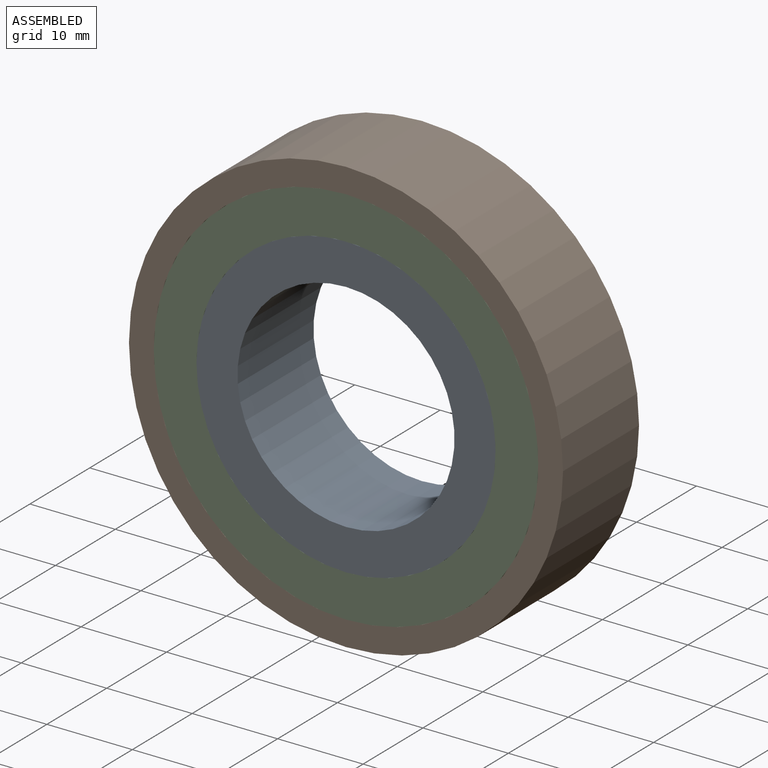
[diagram: assembled view]
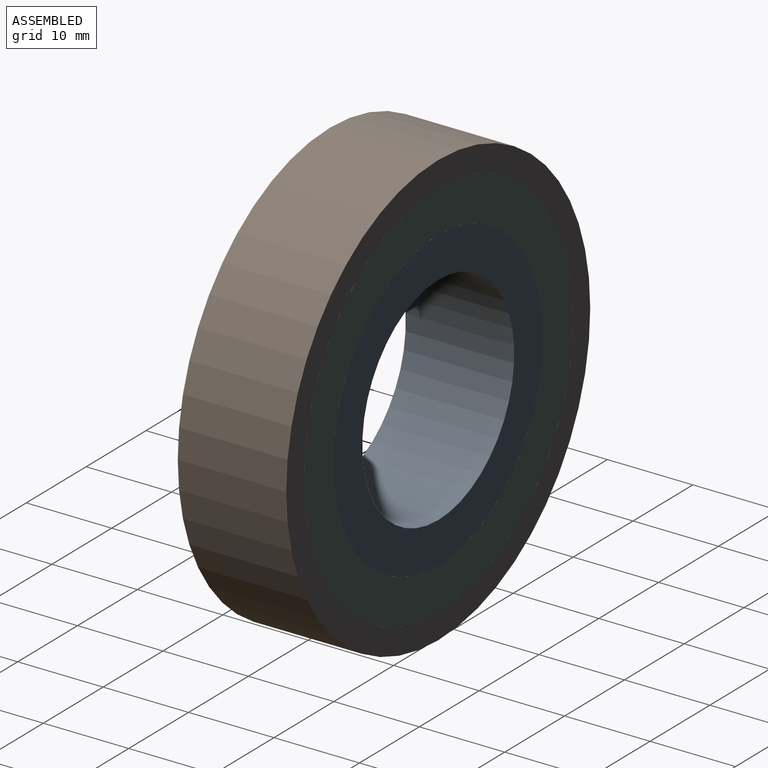
[diagram: assembled view, second angle]
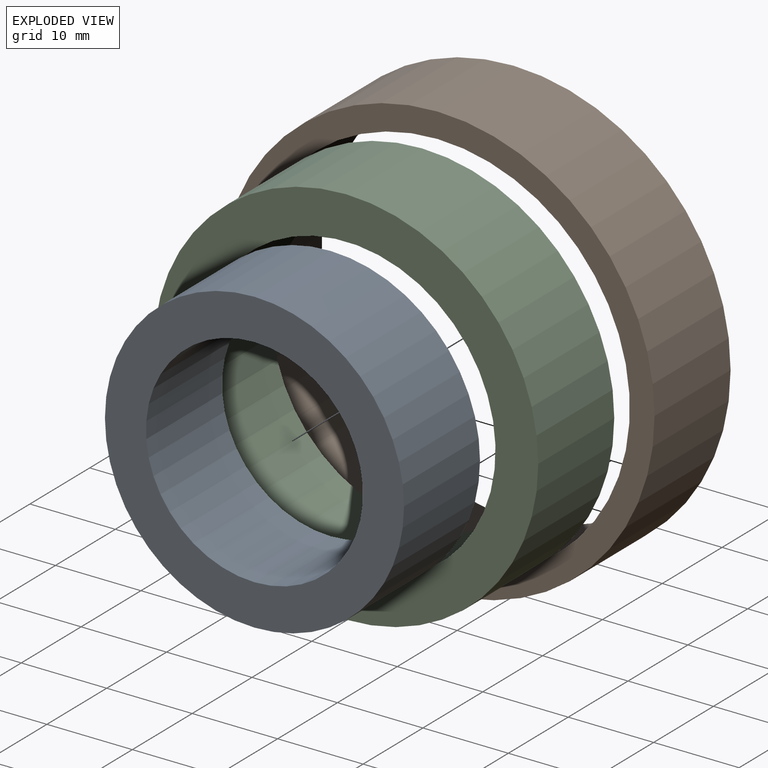
[diagram: exploded view]
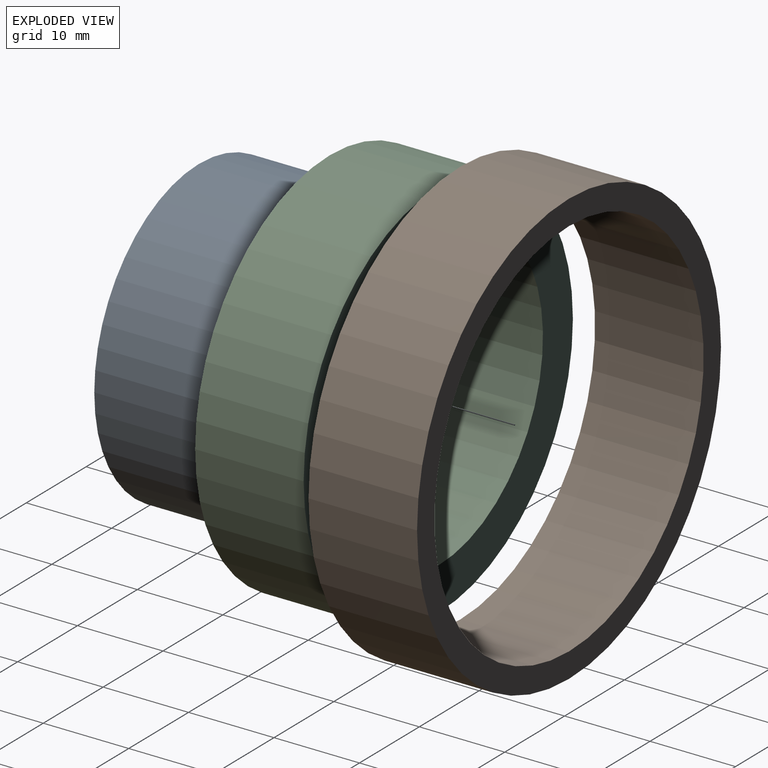
[diagram: exploded view, second angle]
ASSEMBLY  parts=3 mates=2
PART A: 4 faces, bbox 35x12.7x35 mm
  f0: cylinder r=12.7mm len=25.4mm, axis (0,1,0), area 1013.4mm2, adj f2,f3
  f1: cylinder r=17.5mm len=35mm, axis (0,1,0), area 1396.4mm2, adj f2,f3
  f2: plane 35x35mm, normal (0,-1,0), area 455.4mm2, adj f0,f1
  f3: plane 35x35mm, normal (0,1,0), area 455.4mm2, adj f0,f1
PART B: 4 faces, bbox 50.8x12.7x50.8 mm
  f0: cylinder r=22.5mm len=45mm, axis (0,1,0), area 1795.4mm2, adj f2,f3
  f1: cylinder r=25.4mm len=50.8mm, axis (0,1,0), area 2026.8mm2, adj f2,f3
  f2: plane 50.8x50.8mm, normal (0,-1,0), area 436.4mm2, adj f0,f1
  f3: plane 50.8x50.8mm, normal (0,1,0), area 436.4mm2, adj f0,f1
PART C: 4 faces, bbox 45x12.7x45 mm
  f0: cylinder r=17.5mm len=35mm, axis (0,1,0), area 1396.4mm2, adj f2,f3
  f1: cylinder r=22.5mm len=45mm, axis (0,1,0), area 1795.4mm2, adj f2,f3
  f2: plane 45x45mm, normal (0,-1,0), area 628.3mm2, adj f0,f1
  f3: plane 45x45mm, normal (0,1,0), area 628.3mm2, adj f0,f1
PLACE A t=(14.79,1.57,-19.97)mm
PLACE B t=(14.79,1.57,-19.97)mm
PLACE C t=(14.79,1.57,-19.97)mm
MATE revolute B.f0 <-> C.f1  axis (0,1,0) through (14.79,-4.78,-19.97)mm
MATE revolute C.f0 <-> A.f1  axis (0,1,0) through (14.79,-4.78,-19.97)mm
